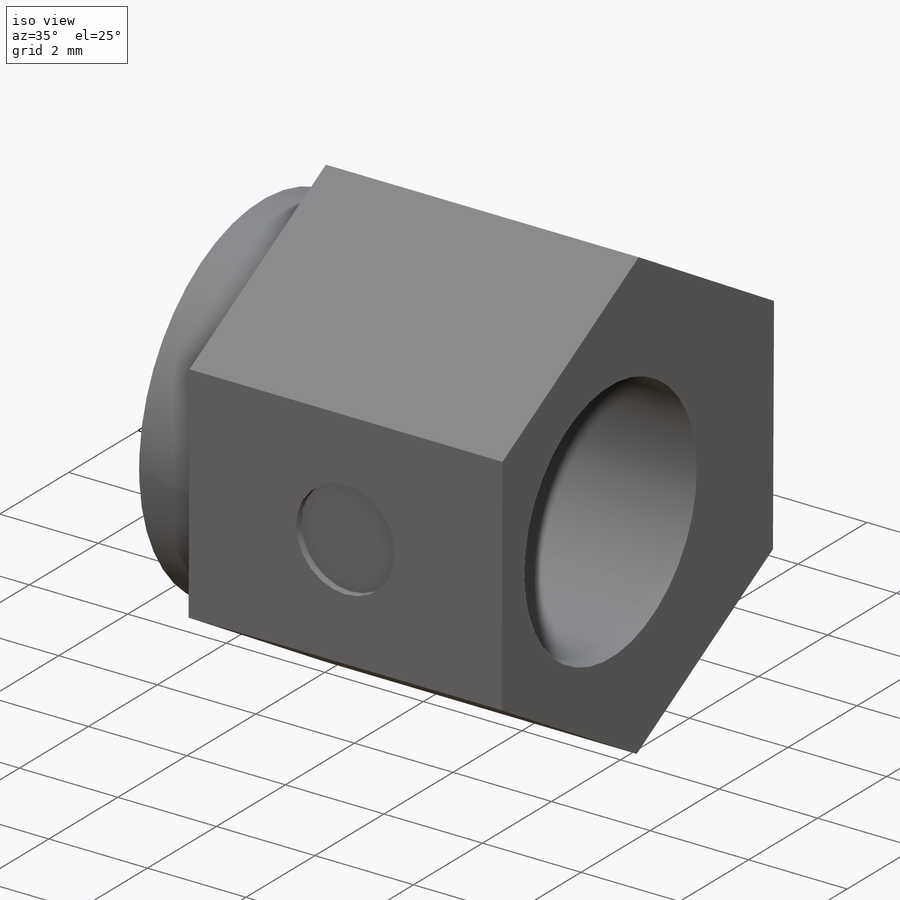
[diagram: iso view]
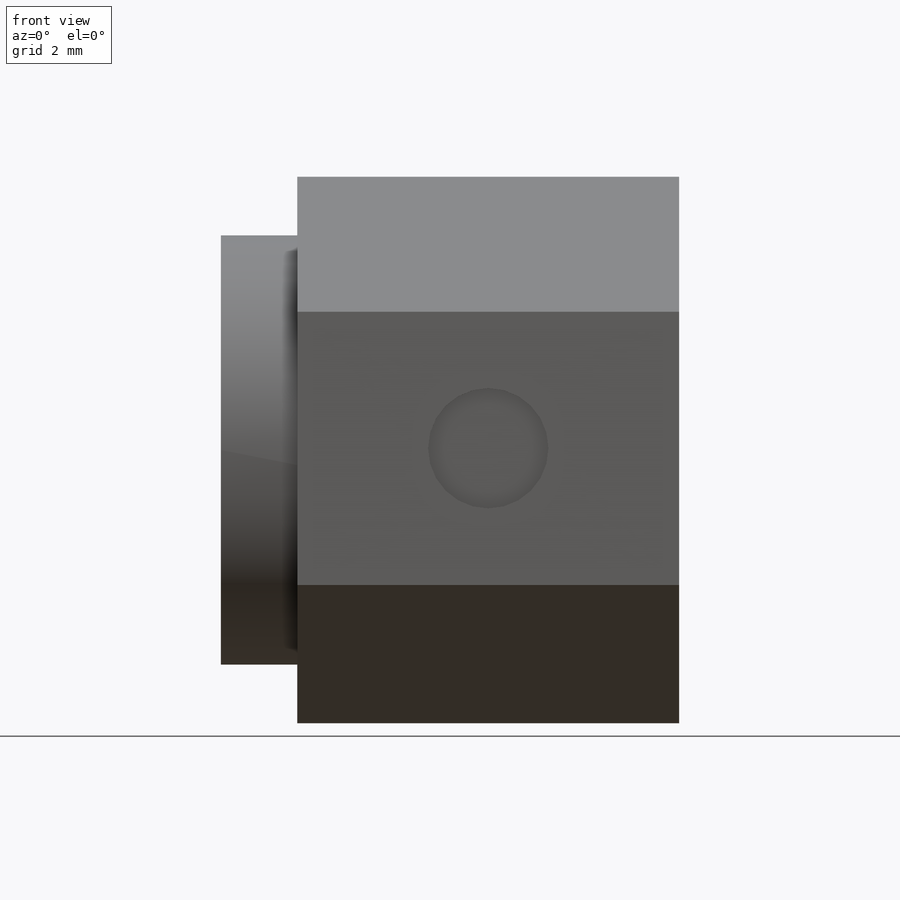
[diagram: front view]
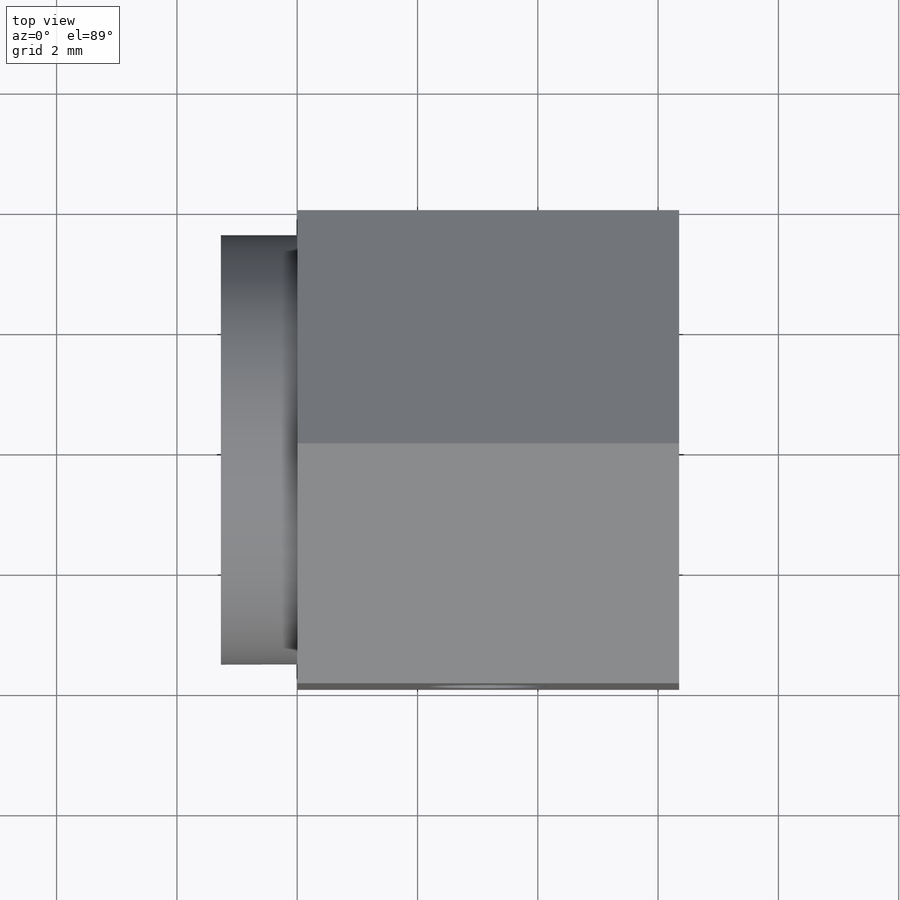
[diagram: top view]
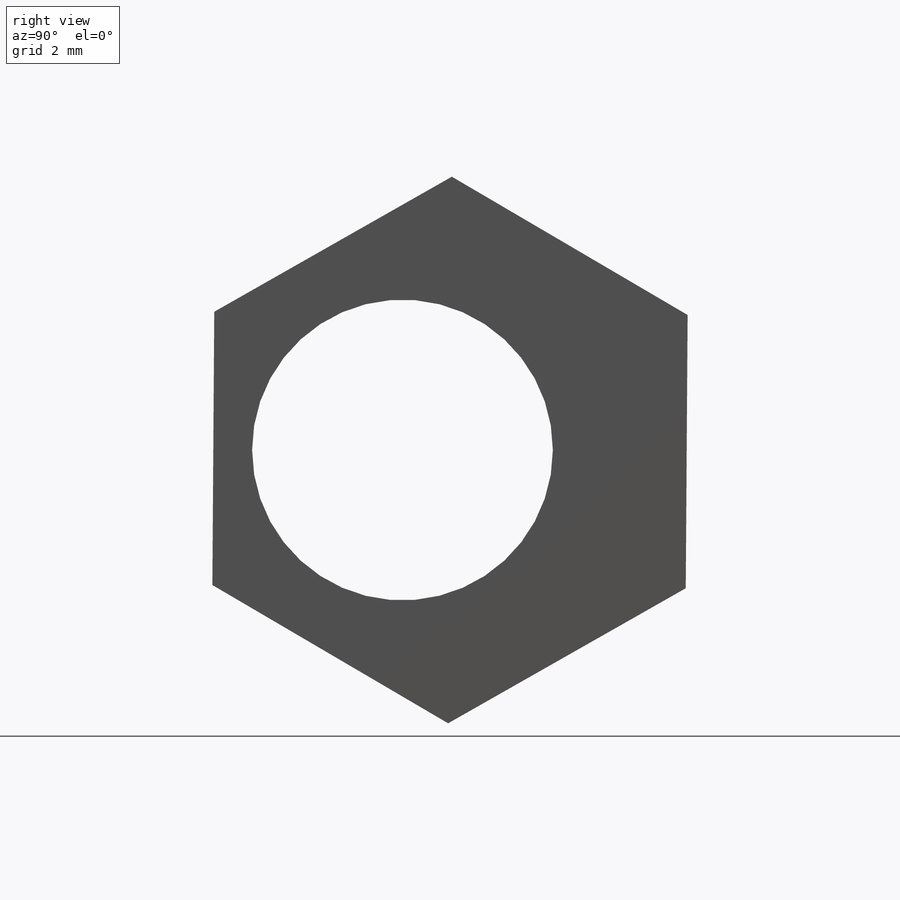
[diagram: right view]
SOLIDWORKS PART (.sldprt)
format: sldprt  version: not decoded by parser v0  size: 214,016 bytes
history: native  units: mm
features: sketch x4, extrude x2, cut_extrude x2, material x1 (+12 scaffold rows collapsed)
feature tree (21):
  scaffold x12  (default folders/planes/origin — collapsed)
  material  "Material <not specified>"
  sketch  "Sketch2"  dims[D1=7.87mm]
  extrude  "Boss-Extrude1"  Depth=6.35mm
  sketch  "Sketch4"  dims[D1=7.14mm]
  extrude  "Boss-Extrude2"  Depth=1.27mm
  sketch  "Sketch3"  dims[D1=5.0mm D2=0.79mm]
  cut_extrude  "Cut-Extrude1"  [1 undecoded]
  sketch  "Sketch5"  dims[D1=2.0mm]
  cut_extrude  "Cut-Extrude3"  Depth=0.15mm
decode coverage: 7 of 8 modeling features carry decoded parameters
note: 1 parameter value undecoded
note: suppression state not decoded; provenance and decode notes live in map.json
